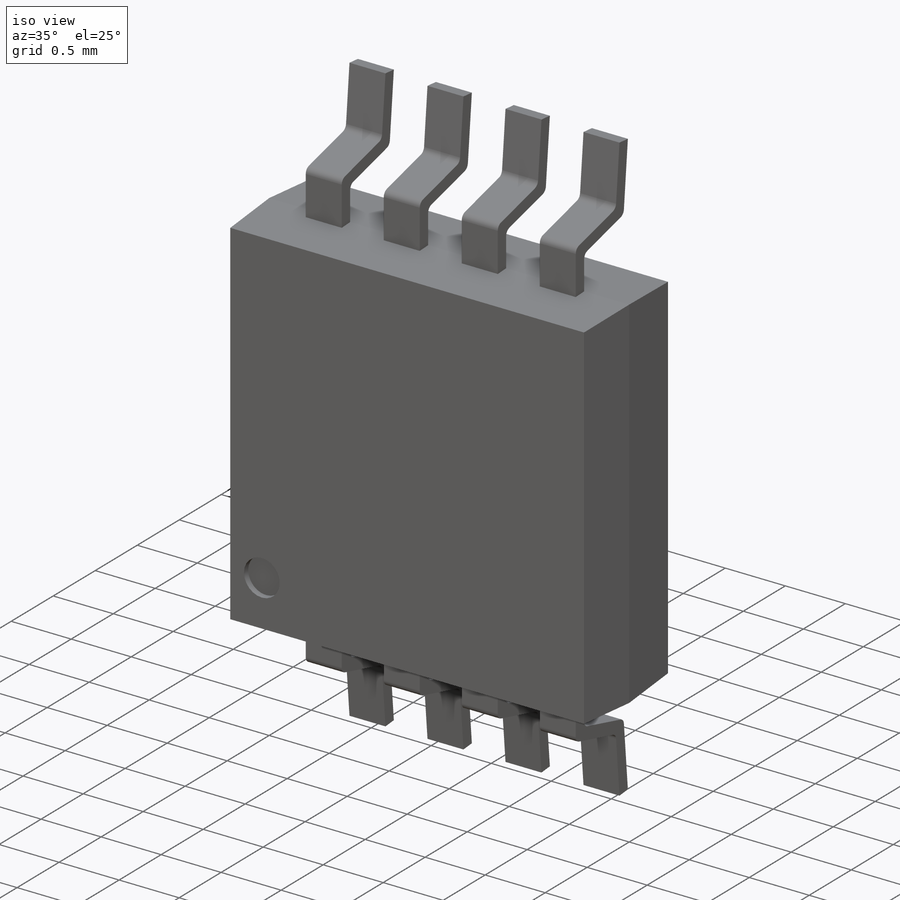
[diagram: iso view]
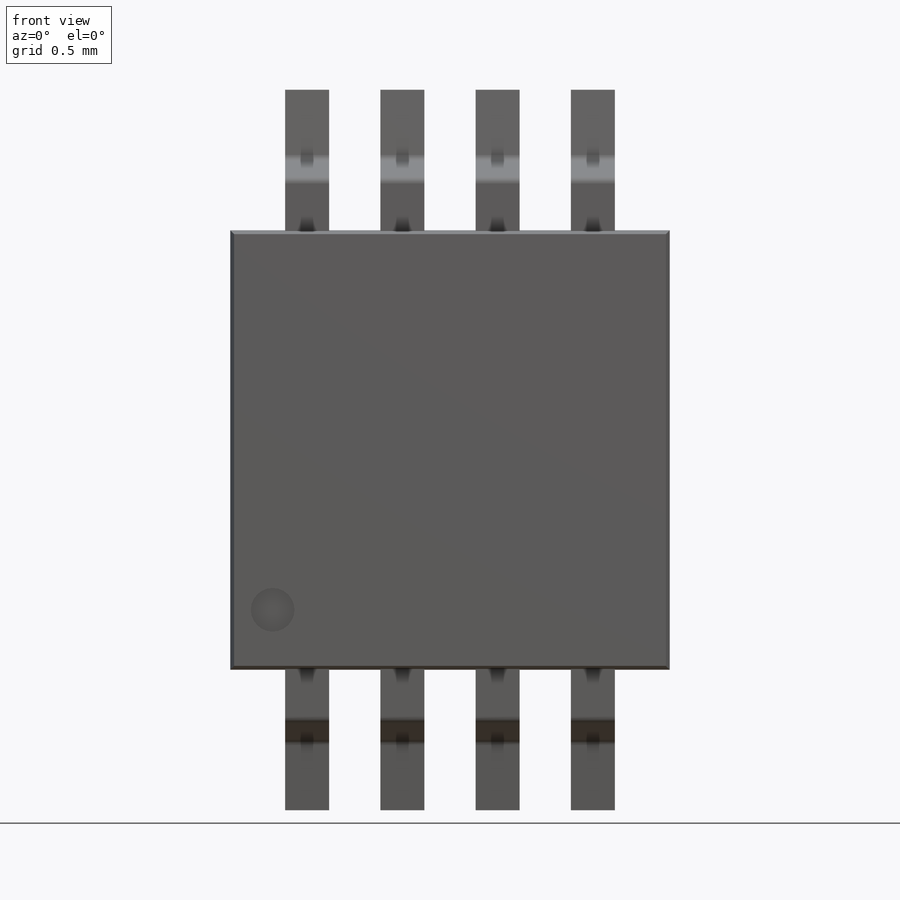
[diagram: front view]
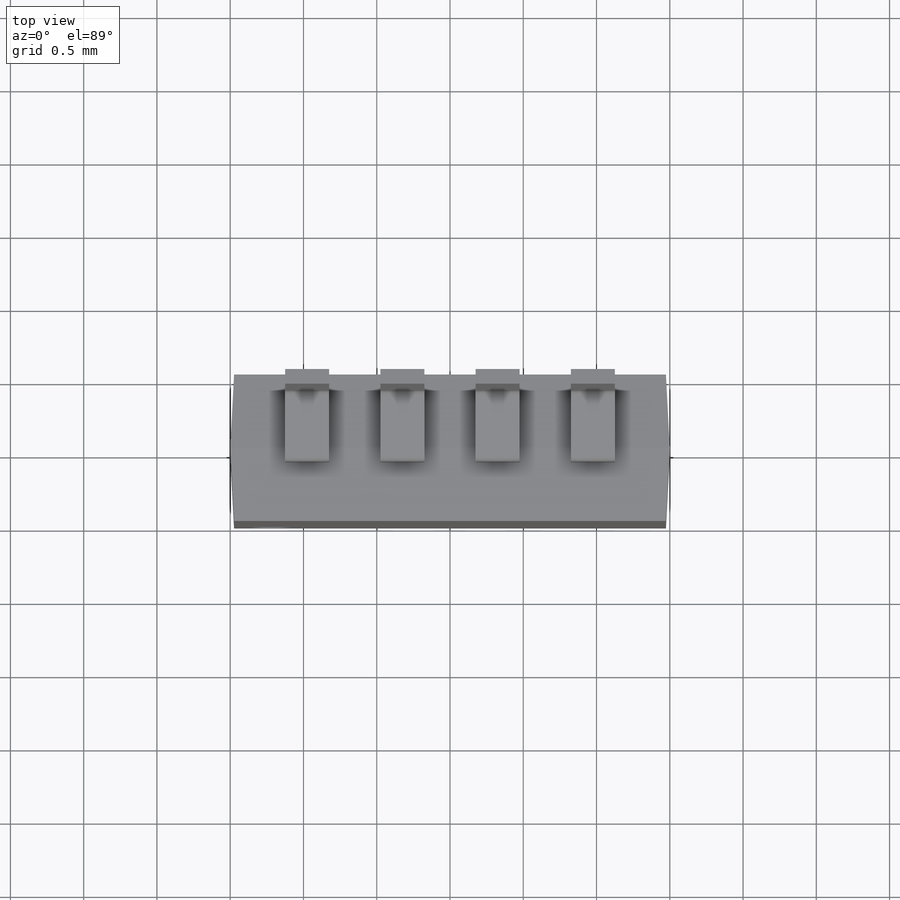
[diagram: top view]
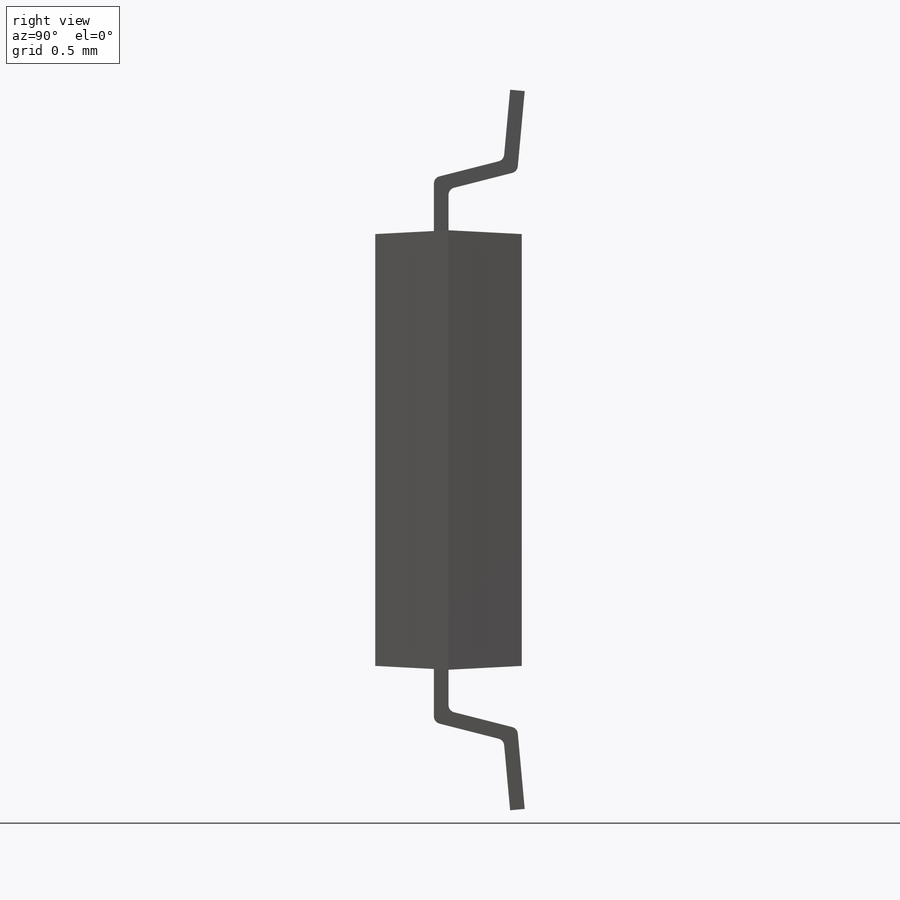
[diagram: right view]
SOLIDWORKS PART (.sldprt)
format: sldprt  version: not decoded by parser v0  size: 247,808 bytes
history: native  units: mm
features: sketch x4, extrude x2, plane x2, material x1, fillet x1, pattern_linear x1, mirror x1, cut_extrude x1 (+13 scaffold rows collapsed)
feature tree (26):
  scaffold x13  (default folders/planes/origin — collapsed)
  material  "Material <not specified>"
  sketch  "Sketch1"  dims[D1=3.0mm D2=3.0mm]
  extrude  "Boss-Extrude1"  Depth=0.5mm
  sketch  "Sketch2"
  extrude  "Boss-Extrude2"  Depth=0.5mm
  plane  "Plane1"  Offset=0.525mm
  plane  "Plane2"  Offset=1.5mm
  sketch  "Sketch3"  dims[c1.D1=1.02mm c1.D2=0.55mm c1.D3=0.95mm c2.D1=0.3mm c2.D5=0.1mm c2.D6=10.0mm c2.D7=5.0mm]
  fillet  "Fillet1"  Radius=0.05mm
  pattern_linear  "LPattern1"  Count1=4 Count2=1 Spacing1=0.65mm Spacing2=10mm
  mirror  "Mirror1"
  sketch  "Sketch4"
  cut_extrude  "Cut-Extrude1"  Depth=0.05mm
decode coverage: 7 of 10 modeling features carry decoded parameters
note: suppression state not decoded; provenance and decode notes live in map.json
